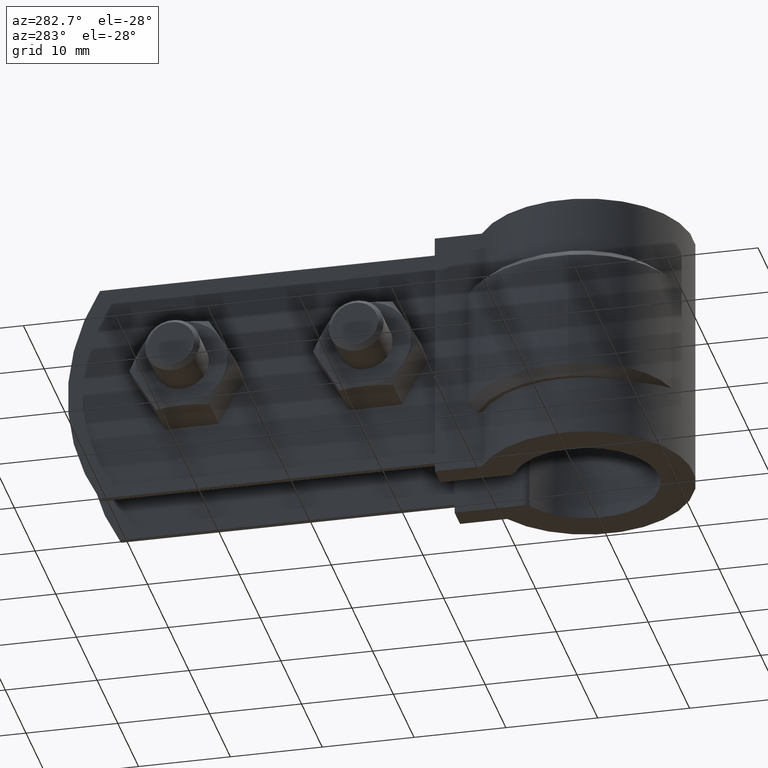
[diagram: clean part render]
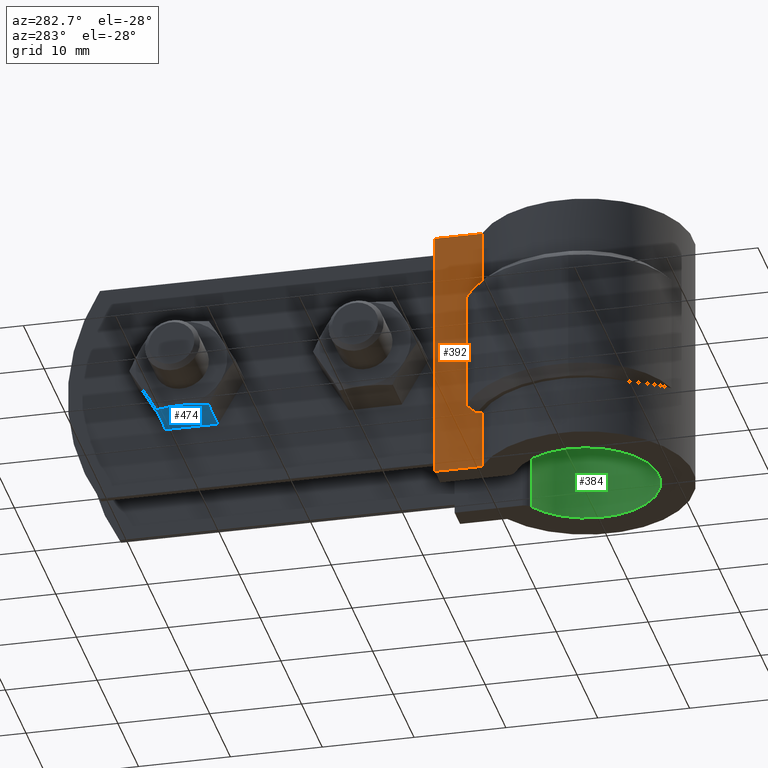
[diagram: same view with three faces highlighted in distinct colors, each labeled with its STEP entity id]
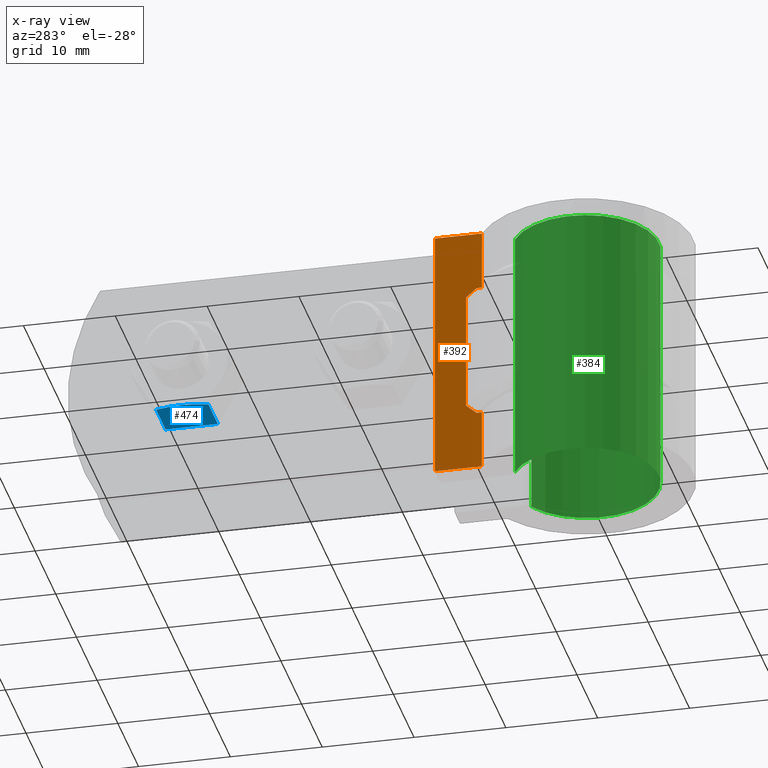
[diagram: x-ray of the same camera — body ghosted, the three highlighted faces saturated]
A machine part, auxiliary view with three faces highlighted in distinct colors.
The next image is the same camera in x-ray (body ghosted, the three faces saturated) — at least one of them is partly hidden behind the body in this view.
Their STEP definitions:

[orange] entity #392 — the highlighted planar face has unit normal (-1, 0, 0).
#392 = ADVANCED_FACE( '', ( #674 ), #675, .T. );
#674 = FACE_OUTER_BOUND( '', #1372, .T. );
#675 = PLANE( '', #1373 );
#1372 = EDGE_LOOP( '', ( #3353, #3354, #3355, #3356, #3357, #3358, #3359, #3360, #3361, #3362 ) );
#1373 = AXIS2_PLACEMENT_3D( '', #3363, #3364, #3365 );
#3353 = ORIENTED_EDGE( '', *, *, #4639, .T. );
#3354 = ORIENTED_EDGE( '', *, *, #4650, .T. );
#3355 = ORIENTED_EDGE( '', *, *, #4651, .T. );
#3356 = ORIENTED_EDGE( '', *, *, #4652, .F. );
#3357 = ORIENTED_EDGE( '', *, *, #4653, .T. );
#3358 = ORIENTED_EDGE( '', *, *, #4654, .F. );
#3359 = ORIENTED_EDGE( '', *, *, #4633, .T. );
#3360 = ORIENTED_EDGE( '', *, *, #4655, .F. );
#3361 = ORIENTED_EDGE( '', *, *, #4525, .F. );
#3362 = ORIENTED_EDGE( '', *, *, #4656, .T. );
#3363 = CARTESIAN_POINT( '', ( -6.10000000000000, 15.1000000000000, -26.5000000000000 ) );
#3364 = DIRECTION( '', ( -1.00000000000000, 6.07153216591882E-017, 0.000000000000000 ) );
#3365 = DIRECTION( '', ( 6.07153216591882E-017, 1.00000000000000, 0.000000000000000 ) );
#4525 = EDGE_CURVE( '', #5131, #5127, #5133, .T. );
#4633 = EDGE_CURVE( '', #5324, #5322, #5325, .T. );
#4639 = EDGE_CURVE( '', #5336, #5334, #5337, .T. );
#4650 = EDGE_CURVE( '', #5334, #5352, #5353, .T. );
#4651 = EDGE_CURVE( '', #5352, #5354, #5355, .T. );
#4652 = EDGE_CURVE( '', #5356, #5354, #5357, .F. );
#4653 = EDGE_CURVE( '', #5356, #5358, #5359, .T. );
#4654 = EDGE_CURVE( '', #5324, #5358, #5360, .T. );
#4655 = EDGE_CURVE( '', #5127, #5322, #5361, .T. );
#4656 = EDGE_CURVE( '', #5131, #5336, #5362, .T. );
#5127 = VERTEX_POINT( '', #6669 );
#5131 = VERTEX_POINT( '', #6675 );
#5133 = LINE( '', #6678, #6679 );
#5322 = VERTEX_POINT( '', #7279 );
#5324 = VERTEX_POINT( '', #7281 );
#5325 = LINE( '', #7282, #7283 );
#5334 = VERTEX_POINT( '', #7307 );
#5336 = VERTEX_POINT( '', #7309 );
#5337 = LINE( '', #7310, #7311 );
#5352 = VERTEX_POINT( '', #7337 );
#5353 = LINE( '', #7338, #7339 );
#5354 = VERTEX_POINT( '', #7340 );
#5355 = B_SPLINE_CURVE_WITH_KNOTS( '', 3, ( #7341, #7342, #7343, #7344 ), .UNSPECIFIED., .F., .F., ( 4, 4 ), ( 0.000000000000000, 0.00151710371603436 ), .UNSPECIFIED. );
#5356 = VERTEX_POINT( '', #7345 );
#5357 = LINE( '', #7346, #7347 );
#5358 = VERTEX_POINT( '', #7348 );
#5359 = B_SPLINE_CURVE_WITH_KNOTS( '', 3, ( #7349, #7350, #7351, #7352 ), .UNSPECIFIED., .F., .F., ( 4, 4 ), ( 0.000000000000000, 0.00151710371603435 ), .UNSPECIFIED. );
#5360 = LINE( '', #7353, #7354 );
#5361 = LINE( '', #7355, #7356 );
#5362 = LINE( '', #7357, #7358 );
#6669 = CARTESIAN_POINT( '', ( -6.10000000000003, 15.1000000000000, 1.50000000000000 ) );
#6675 = CARTESIAN_POINT( '', ( -6.10000000000003, 15.1000000000000, -26.5000000000000 ) );
#6678 = CARTESIAN_POINT( '', ( -6.10000000000003, 15.1000000000000, -26.5000000000000 ) );
#6679 = VECTOR( '', #8405, 1000.00000000000 );
#7279 = CARTESIAN_POINT( '', ( -6.10000000000000, 9.96640481818793, 1.50000000000000 ) );
#7281 = CARTESIAN_POINT( '', ( -6.10000000000001, 9.96640481818795, -5.00000000000000 ) );
#7282 = CARTESIAN_POINT( '', ( -6.10000000000000, 9.96640481818793, -26.5000000000000 ) );
#7283 = VECTOR( '', #8540, 1000.00000000000 );
#7307 = CARTESIAN_POINT( '', ( -6.10000000000000, 9.96640481818793, -20.0000000000000 ) );
#7309 = CARTESIAN_POINT( '', ( -6.10000000000000, 9.96640481818793, -26.5000000000000 ) );
#7310 = CARTESIAN_POINT( '', ( -6.10000000000000, 9.96640481818793, -26.5000000000000 ) );
#7311 = VECTOR( '', #8548, 1000.00000000000 );
#7337 = CARTESIAN_POINT( '', ( -6.10000000000000, 10.5481858629814, -20.0000000000000 ) );
#7338 = CARTESIAN_POINT( '', ( -6.10000000000000, 15.1000000000000, -20.0000000000000 ) );
#7339 = VECTOR( '', #8560, 1000.00000000000 );
#7340 = CARTESIAN_POINT( '', ( -6.10000000000000, 11.6890643338122, -19.0000000000000 ) );
#7341 = CARTESIAN_POINT( '', ( -6.10000000000000, 10.5481858629814, -20.0000000000000 ) );
#7342 = CARTESIAN_POINT( '', ( -6.10000000000000, 10.9305273533123, -19.6690185389299 ) );
#7343 = CARTESIAN_POINT( '', ( -6.10000000000000, 11.3106579793807, -19.3354733576999 ) );
#7344 = CARTESIAN_POINT( '', ( -6.10000000000000, 11.6890643338122, -19.0000000000000 ) );
#7345 = CARTESIAN_POINT( '', ( -6.10000000000000, 11.6890643338122, -6.00000000000000 ) );
#7346 = CARTESIAN_POINT( '', ( -6.10000000000000, 11.6890643338122, -20.0000000000000 ) );
#7347 = VECTOR( '', #8561, 1000.00000000000 );
#7348 = CARTESIAN_POINT( '', ( -6.10000000000000, 10.5481858629814, -5.00000000000000 ) );
#7349 = CARTESIAN_POINT( '', ( -6.10000000000000, 11.6890643338122, -6.00000000000000 ) );
#7350 = CARTESIAN_POINT( '', ( -6.10000000000000, 11.3106579793807, -5.66452664230010 ) );
#7351 = CARTESIAN_POINT( '', ( -6.10000000000000, 10.9305273533123, -5.33098146107014 ) );
#7352 = CARTESIAN_POINT( '', ( -6.10000000000000, 10.5481858629814, -5.00000000000000 ) );
#7353 = CARTESIAN_POINT( '', ( -6.10000000000000, 15.1000000000000, -5.00000000000000 ) );
#7354 = VECTOR( '', #8562, 1000.00000000000 );
#7355 = CARTESIAN_POINT( '', ( -6.10000000000000, 15.1000000000000, 1.50000000000000 ) );
#7356 = VECTOR( '', #8563, 1000.00000000000 );
#7357 = CARTESIAN_POINT( '', ( -6.10000000000000, 15.1000000000000, -26.5000000000000 ) );
#7358 = VECTOR( '', #8564, 1000.00000000000 );
#8405 = DIRECTION( '', ( 0.000000000000000, 0.000000000000000, 1.00000000000000 ) );
#8540 = DIRECTION( '', ( 0.000000000000000, 0.000000000000000, 1.00000000000000 ) );
#8548 = DIRECTION( '', ( 0.000000000000000, 0.000000000000000, 1.00000000000000 ) );
#8560 = DIRECTION( '', ( 6.07153216591882E-017, 1.00000000000000, 0.000000000000000 ) );
#8561 = DIRECTION( '', ( 0.000000000000000, 0.000000000000000, 1.00000000000000 ) );
#8562 = DIRECTION( '', ( 6.07153216591882E-017, 1.00000000000000, 0.000000000000000 ) );
#8563 = DIRECTION( '', ( -6.07153216591882E-017, -1.00000000000000, 0.000000000000000 ) );
#8564 = DIRECTION( '', ( -6.07153216591882E-017, -1.00000000000000, 0.000000000000000 ) );

[blue] entity #474 — the highlighted planar face has unit normal (0, 0, 1).
#474 = ADVANCED_FACE( '', ( #846 ), #847, .F. );
#846 = FACE_OUTER_BOUND( '', #1832, .T. );
#847 = PLANE( '', #1833 );
#1832 = EDGE_LOOP( '', ( #4152, #4153, #4154, #4155, #4156 ) );
#1833 = AXIS2_PLACEMENT_3D( '', #4157, #4158, #4159 );
#4152 = ORIENTED_EDGE( '', *, *, #4790, .F. );
#4153 = ORIENTED_EDGE( '', *, *, #4823, .F. );
#4154 = ORIENTED_EDGE( '', *, *, #4824, .F. );
#4155 = ORIENTED_EDGE( '', *, *, #4797, .F. );
#4156 = ORIENTED_EDGE( '', *, *, #4817, .F. );
#4157 = CARTESIAN_POINT( '', ( -5.09999999999999, 38.9087247554551, -17.5000000000000 ) );
#4158 = DIRECTION( '', ( 0.000000000000000, 5.55111512312577E-017, 1.00000000000000 ) );
#4159 = DIRECTION( '', ( 0.000000000000000, -1.00000000000000, 5.55111512312578E-017 ) );
#4790 = EDGE_CURVE( '', #5563, #5576, #5577, .T. );
#4797 = EDGE_CURVE( '', #5587, #5589, #5590, .T. );
#4817 = EDGE_CURVE( '', #5576, #5587, #5620, .T. );
#4823 = EDGE_CURVE( '', #5628, #5563, #5629, .T. );
#4824 = EDGE_CURVE( '', #5589, #5628, #5630, .F. );
#5563 = VERTEX_POINT( '', #7935 );
#5576 = VERTEX_POINT( '', #7954 );
#5577 = B_SPLINE_CURVE_WITH_KNOTS( '', 3, ( #7955, #7956, #7957, #7958, #7959, #7960, #7961, #7962 ), .UNSPECIFIED., .F., .F., ( 4, 2, 2, 4 ), ( 0.00287277010488787, 0.00358771851305255, 0.00430266692121724, 0.00573256373754661 ), .UNSPECIFIED. );
#5587 = VERTEX_POINT( '', #7973 );
#5589 = VERTEX_POINT( '', #7975 );
#5590 = LINE( '', #7976, #7977 );
#5620 = LINE( '', #8041, #8042 );
#5628 = VERTEX_POINT( '', #8062 );
#5629 = B_SPLINE_CURVE_WITH_KNOTS( '', 3, ( #8063, #8064, #8065, #8066 ), .UNSPECIFIED., .F., .F., ( 4, 4 ), ( 7.22330826798640E-007, 0.00287277010488787 ), .UNSPECIFIED. );
#5630 = LINE( '', #8067, #8068 );
#7935 = CARTESIAN_POINT( '', ( -10.1000000000000, 41.7954761014032, -17.5000000000000 ) );
#7954 = CARTESIAN_POINT( '', ( -9.66698729810776, 38.9560219285031, -17.5000000000000 ) );
#7955 = CARTESIAN_POINT( '', ( -10.1000000000000, 41.7954761014032, -17.5000000000000 ) );
#7956 = CARTESIAN_POINT( '', ( -10.1000000000000, 41.5548531427122, -17.5000000000000 ) );
#7957 = CARTESIAN_POINT( '', ( -10.0898108720832, 41.3128398312039, -17.5000000000000 ) );
#7958 = CARTESIAN_POINT( '', ( -10.0502996398893, 40.8340233942934, -17.5000000000000 ) );
#7959 = CARTESIAN_POINT( '', ( -10.0210226875359, 40.5961902183759, -17.5000000000000 ) );
#7960 = CARTESIAN_POINT( '', ( -9.90799451667569, 39.8868588913892, -17.5000000000000 ) );
#7961 = CARTESIAN_POINT( '', ( -9.79913188755700, 39.4195147307717, -17.5000000000000 ) );
#7962 = CARTESIAN_POINT( '', ( -9.66698729810775, 38.9560219285031, -17.5000000000000 ) );
#7973 = CARTESIAN_POINT( '', ( -5.09999999999999, 38.9560219285031, -17.5000000000000 ) );
#7975 = CARTESIAN_POINT( '', ( -5.09999999999999, 44.6349302743034, -17.5000000000000 ) );
#7976 = CARTESIAN_POINT( '', ( -5.09999999999999, 44.6704761014032, -17.5000000000000 ) );
#7977 = VECTOR( '', #8753, 1000.00000000000 );
#8041 = CARTESIAN_POINT( '', ( -5.09999999999999, 38.9560219285031, -17.5000000000000 ) );
#8042 = VECTOR( '', #8778, 999.999999999998 );
#8062 = CARTESIAN_POINT( '', ( -9.66698729810776, 44.6349302743034, -17.5000000000000 ) );
#8063 = CARTESIAN_POINT( '', ( -9.66698729810775, 44.6349302743034, -17.5000000000000 ) );
#8064 = CARTESIAN_POINT( '', ( -9.93203573458743, 43.7052815987664, -17.5000000000000 ) );
#8065 = CARTESIAN_POINT( '', ( -10.1000000000000, 42.7620921886685, -17.5000000000000 ) );
#8066 = CARTESIAN_POINT( '', ( -10.1000000000000, 41.7954761014032, -17.5000000000000 ) );
#8067 = CARTESIAN_POINT( '', ( -5.09999999999999, 44.6349302743034, -17.5000000000000 ) );
#8068 = VECTOR( '', #8784, 999.999999999998 );
#8753 = DIRECTION( '', ( 0.000000000000000, 1.00000000000000, -5.55111512312578E-017 ) );
#8778 = DIRECTION( '', ( 1.00000000000000, 0.000000000000000, 0.000000000000000 ) );
#8784 = DIRECTION( '', ( 1.00000000000000, 0.000000000000000, 0.000000000000000 ) );

[green] entity #384 — the highlighted cylindrical surface (partial cylindrical patch) has radius 7.94 mm, axis along (0, 0, -1).
#384 = ADVANCED_FACE( '', ( #657 ), #658, .F. );
#657 = FACE_OUTER_BOUND( '', #1355, .T. );
#658 = CYLINDRICAL_SURFACE( '', #1356, 7.94000000000000 );
#1355 = EDGE_LOOP( '', ( #3275, #3276, #3277, #3278 ) );
#1356 = AXIS2_PLACEMENT_3D( '', #3279, #3280, #3281 );
#3275 = ORIENTED_EDGE( '', *, *, #4612, .F. );
#3276 = ORIENTED_EDGE( '', *, *, #4609, .T. );
#3277 = ORIENTED_EDGE( '', *, *, #4613, .T. );
#3278 = ORIENTED_EDGE( '', *, *, #4605, .T. );
#3279 = CARTESIAN_POINT( '', ( 0.000000000000000, 0.000000000000000, -48.3949279539566 ) );
#3280 = DIRECTION( '', ( 0.000000000000000, 0.000000000000000, -1.00000000000000 ) );
#3281 = DIRECTION( '', ( -1.00000000000000, 0.000000000000000, 0.000000000000000 ) );
#4605 = EDGE_CURVE( '', #5275, #5272, #5276, .F. );
#4609 = EDGE_CURVE( '', #5283, #5280, #5284, .T. );
#4612 = EDGE_CURVE( '', #5283, #5272, #5288, .F. );
#4613 = EDGE_CURVE( '', #5280, #5275, #5289, .F. );
#5272 = VERTEX_POINT( '', #7199 );
#5275 = VERTEX_POINT( '', #7202 );
#5276 = LINE( '', #7203, #7204 );
#5280 = VERTEX_POINT( '', #7209 );
#5283 = VERTEX_POINT( '', #7212 );
#5284 = LINE( '', #7213, #7214 );
#5288 = CIRCLE( '', #7219, 7.94000000000000 );
#5289 = CIRCLE( '', #7220, 7.94000000000000 );
#7199 = CARTESIAN_POINT( '', ( 3.99664429530202, 6.86078963216552, -26.5000000000000 ) );
#7202 = CARTESIAN_POINT( '', ( 3.99664429530202, 6.86078963216552, 1.50000000000000 ) );
#7203 = CARTESIAN_POINT( '', ( 3.99664429530202, 6.86078963216552, -48.3949279539566 ) );
#7204 = VECTOR( '', #8491, 1000.00000000000 );
#7209 = CARTESIAN_POINT( '', ( -3.99664429530201, 6.86078963216552, 1.50000000000000 ) );
#7212 = CARTESIAN_POINT( '', ( -3.99664429530201, 6.86078963216552, -26.5000000000000 ) );
#7213 = CARTESIAN_POINT( '', ( -3.99664429530201, 6.86078963216552, -48.3949279539566 ) );
#7214 = VECTOR( '', #8499, 1000.00000000000 );
#7219 = AXIS2_PLACEMENT_3D( '', #8504, #8505, #8506 );
#7220 = AXIS2_PLACEMENT_3D( '', #8507, #8508, #8509 );
#8491 = DIRECTION( '', ( 0.000000000000000, 0.000000000000000, 1.00000000000000 ) );
#8499 = DIRECTION( '', ( 0.000000000000000, 0.000000000000000, 1.00000000000000 ) );
#8504 = CARTESIAN_POINT( '', ( 0.000000000000000, 0.000000000000000, -26.5000000000000 ) );
#8505 = DIRECTION( '', ( 0.000000000000000, 0.000000000000000, -1.00000000000000 ) );
#8506 = DIRECTION( '', ( -1.00000000000000, 0.000000000000000, 0.000000000000000 ) );
#8507 = CARTESIAN_POINT( '', ( 0.000000000000000, 0.000000000000000, 1.50000000000000 ) );
#8508 = DIRECTION( '', ( 0.000000000000000, 0.000000000000000, -1.00000000000000 ) );
#8509 = DIRECTION( '', ( -1.00000000000000, 0.000000000000000, 0.000000000000000 ) );